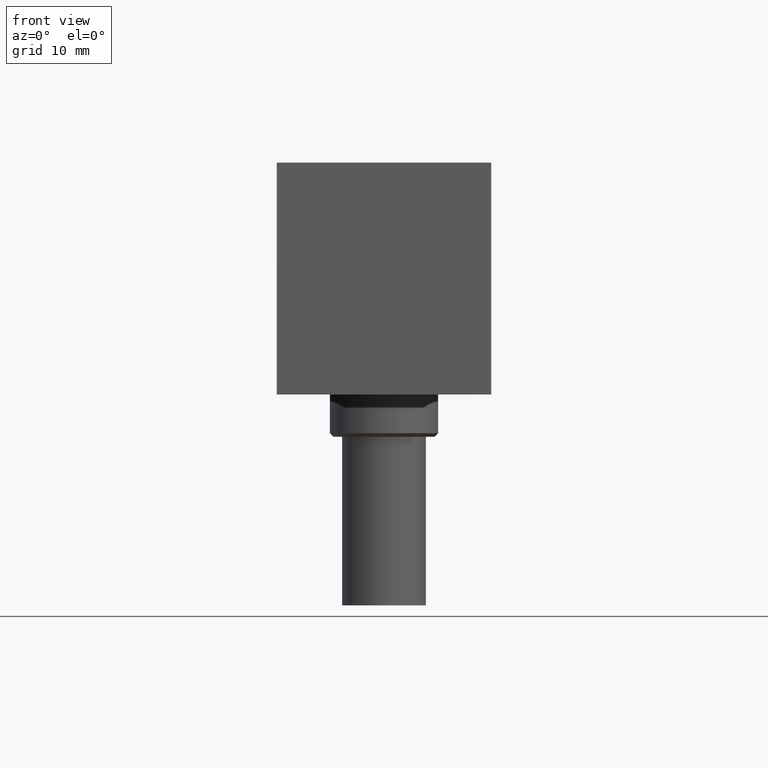
[diagram: clean part render]
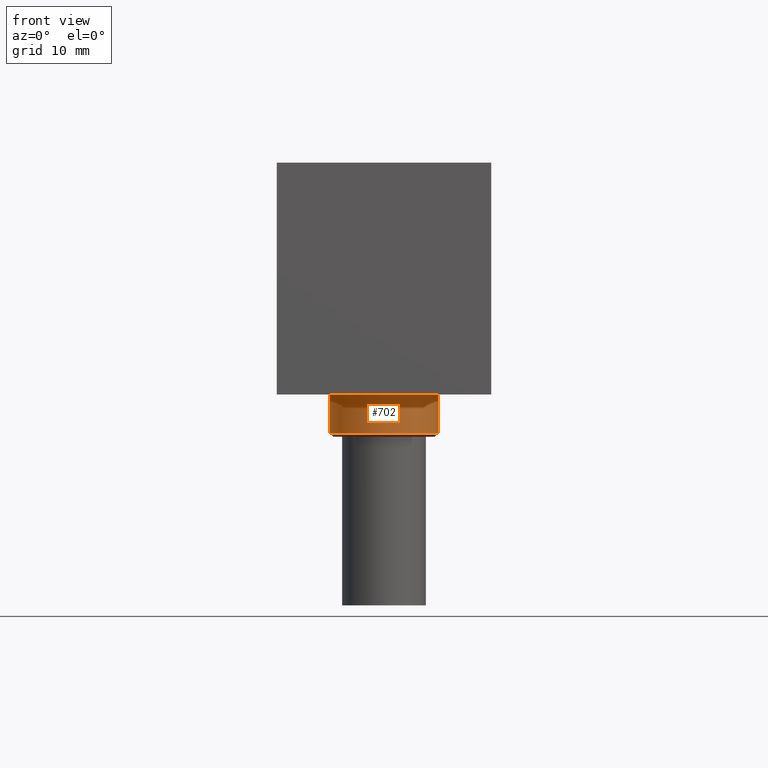
[diagram: same view with one face highlighted and labeled with its STEP entity id]
A machine part, front view. The second image highlights one B-rep face of the part: STEP entity #702.
In plain terms, the highlighted cylindrical surface (bore or boss wall) has radius 7.75 mm, axis along (0, 0, -1).
Its self-contained STEP definition (entity closure, byte-faithful):
#627=CARTESIAN_POINT('',(0.0,-7.749999999969077,0.0));
#628=VERTEX_POINT('',#627);
#629=CARTESIAN_POINT('',(0.0,7.749999999969077,0.0));
#630=VERTEX_POINT('',#629);
#631=CARTESIAN_POINT('',(0.0,0.0,0.0));
#632=DIRECTION('',(0.0,0.0,-1.0));
#633=DIRECTION('',(0.0,1.0,0.0));
#634=AXIS2_PLACEMENT_3D('',#631,#632,#633);
#635=CIRCLE('',#634,7.749999999969077);
#636=EDGE_CURVE('',#628,#630,#635,.T.);
#638=CARTESIAN_POINT('',(0.0,0.0,0.0));
#639=DIRECTION('',(0.0,0.0,-1.0));
#640=DIRECTION('',(0.0,1.0,0.0));
#641=AXIS2_PLACEMENT_3D('',#638,#639,#640);
#642=CIRCLE('',#641,7.749999999969077);
#643=EDGE_CURVE('',#630,#628,#642,.T.);
#668=CARTESIAN_POINT('',(0.0,0.0,0.0));
#669=DIRECTION('',(0.0,0.0,-1.0));
#670=DIRECTION('',(0.0,1.0,0.0));
#671=AXIS2_PLACEMENT_3D('',#668,#669,#670);
#672=CYLINDRICAL_SURFACE('',#671,7.749999999969077);
#673=ORIENTED_EDGE('',*,*,#643,.T.);
#674=ORIENTED_EDGE('',*,*,#636,.T.);
#675=CARTESIAN_POINT('',(0.0,7.749999999969077,-5.499999999977959));
#676=VERTEX_POINT('',#675);
#677=CARTESIAN_POINT('',(0.0,7.749999999969077,0.0));
#678=DIRECTION('',(0.0,0.0,-1.0));
#679=VECTOR('',#678,5.499999999977959);
#680=LINE('',#677,#679);
#681=EDGE_CURVE('',#630,#676,#680,.T.);
#682=ORIENTED_EDGE('',*,*,#681,.T.);
#683=CARTESIAN_POINT('',(0.0,-7.749999999969077,-5.499999999977959));
#684=VERTEX_POINT('',#683);
#685=CARTESIAN_POINT('',(0.0,0.0,-5.499999999977959));
#686=DIRECTION('',(0.0,0.0,-1.0));
#687=DIRECTION('',(0.0,1.0,0.0));
#688=AXIS2_PLACEMENT_3D('',#685,#686,#687);
#689=CIRCLE('',#688,7.749999999969077);
#690=EDGE_CURVE('',#684,#676,#689,.T.);
#691=ORIENTED_EDGE('',*,*,#690,.F.);
#692=CARTESIAN_POINT('',(0.0,0.0,-5.499999999977959));
#693=DIRECTION('',(0.0,0.0,-1.0));
#694=DIRECTION('',(0.0,1.0,0.0));
#695=AXIS2_PLACEMENT_3D('',#692,#693,#694);
#696=CIRCLE('',#695,7.749999999969077);
#697=EDGE_CURVE('',#676,#684,#696,.T.);
#698=ORIENTED_EDGE('',*,*,#697,.F.);
#699=ORIENTED_EDGE('',*,*,#681,.F.);
#700=EDGE_LOOP('',(#673,#674,#682,#691,#698,#699));
#701=FACE_OUTER_BOUND('',#700,.T.);
#702=ADVANCED_FACE('',(#701),#672,.T.);